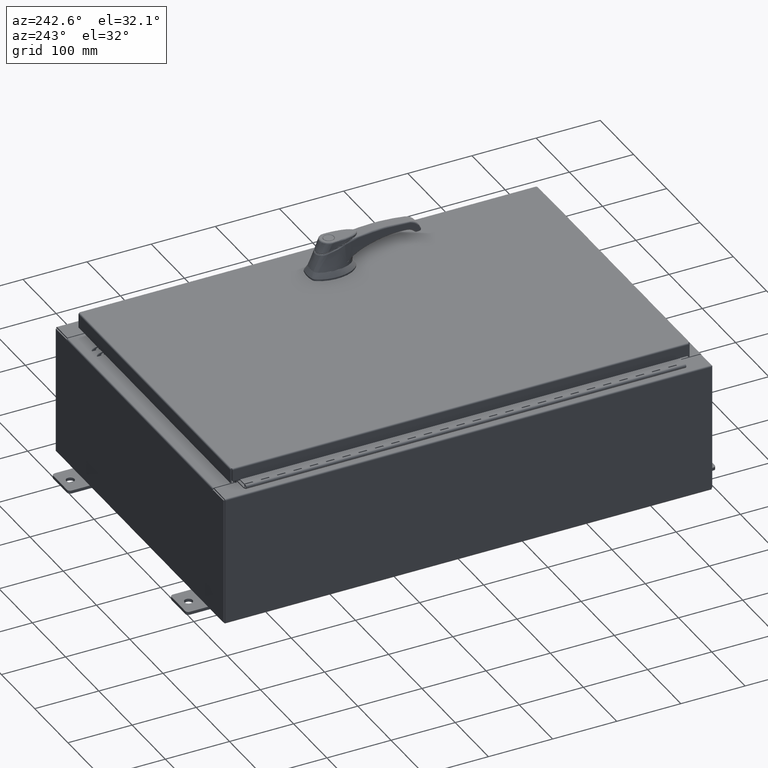
[diagram: clean part render]
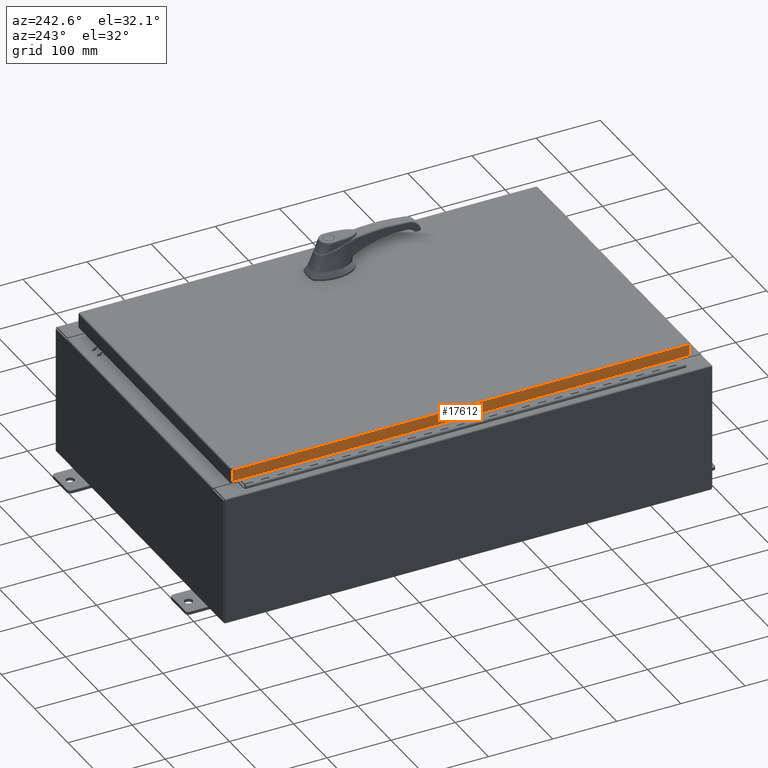
[diagram: same view with one face highlighted and labeled with its STEP entity id]
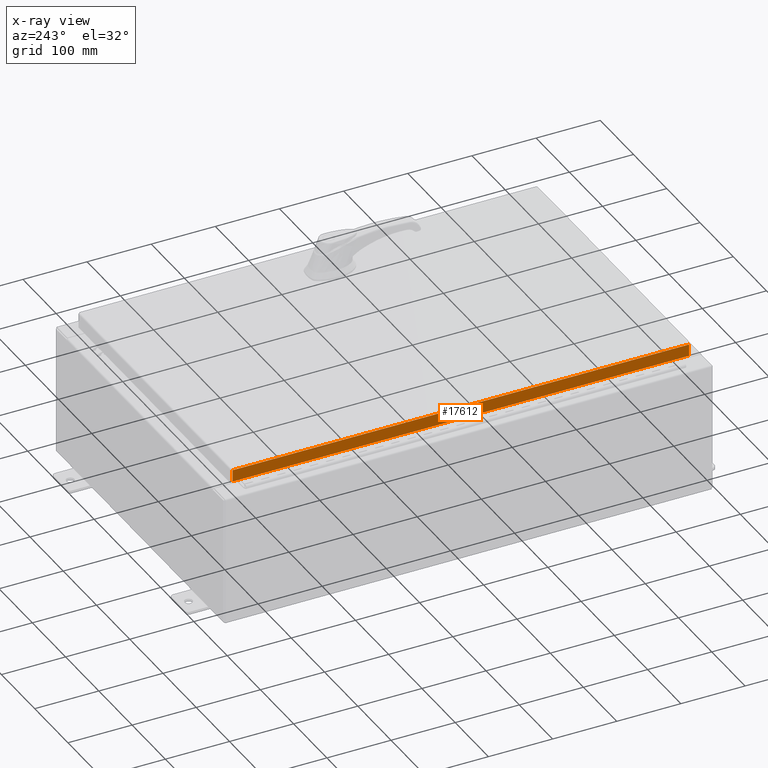
[diagram: x-ray of the same camera — body ghosted, the highlighted face saturated]
A machine part, auxiliary view. The second image highlights one B-rep face of the part: STEP entity #17612.
The next image is the same camera in x-ray: the body ghosted, the highlighted face saturated — about 0% of this face is hidden behind the body in this view.
In plain terms, the highlighted planar face has unit normal (1, 0, -0).
Its self-contained STEP definition (entity closure, byte-faithful):
#2409 = DIRECTION ( 'NONE',  ( -3.034122441942816500E-015, 6.982962677686265900E-015, -1.000000000000000000 ) ) ;
#4701 = CARTESIAN_POINT ( 'NONE',  ( -9.077999999999997600, -14.09399999999999600, -0.08770000000000004200 ) ) ;
#5385 = LINE ( 'NONE', #4701, #98718 ) ;
#9380 = DIRECTION ( 'NONE',  ( -3.034122441942816500E-015, 6.982962677686265900E-015, -1.000000000000000000 ) ) ;
#10675 = CARTESIAN_POINT ( 'NONE',  ( -9.077999999999997600, 14.00515786437626900, -0.08770000000000004200 ) ) ;
#12129 = CARTESIAN_POINT ( 'NONE',  ( -9.077999999999999400, -14.00515786437626200, -0.7949999999999996000 ) ) ;
#12410 = EDGE_CURVE ( 'NONE', #107409, #42560, #48843, .T. ) ;
#13915 = VECTOR ( 'NONE', #80668, 39.37007874015748100 ) ;
#14310 = VERTEX_POINT ( 'NONE', #35357 ) ;
#16062 = ORIENTED_EDGE ( 'NONE', *, *, #12410, .F. ) ;
#17612 = ADVANCED_FACE ( 'NONE', ( #58054 ), #82878, .F. ) ;
#20105 = DIRECTION ( 'NONE',  ( -3.034122441942816500E-015, 0.0000000000000000000, -1.000000000000000000 ) ) ;
#21357 = AXIS2_PLACEMENT_3D ( 'NONE', #101096, #74206, #20105 ) ;
#30541 = VECTOR ( 'NONE', #9380, 39.37007874015748100 ) ;
#34143 = LINE ( 'NONE', #74362, #76548 ) ;
#35357 = CARTESIAN_POINT ( 'NONE',  ( -9.077999999999999400, 14.00515786437627400, -0.7949999999999962700 ) ) ;
#38227 = EDGE_LOOP ( 'NONE', ( #45736, #46488, #67295, #16062 ) ) ;
#42560 = VERTEX_POINT ( 'NONE', #12129 ) ;
#44696 = CARTESIAN_POINT ( 'NONE',  ( -9.077999999999999400, -14.09399999999999600, -0.7949999999999997100 ) ) ;
#45736 = ORIENTED_EDGE ( 'NONE', *, *, #47147, .F. ) ;
#46488 = ORIENTED_EDGE ( 'NONE', *, *, #55041, .T. ) ;
#47147 = EDGE_CURVE ( 'NONE', #53755, #107409, #5385, .T. ) ;
#48843 = LINE ( 'NONE', #63526, #30541 ) ;
#53755 = VERTEX_POINT ( 'NONE', #10675 ) ;
#55041 = EDGE_CURVE ( 'NONE', #53755, #14310, #34143, .T. ) ;
#58054 = FACE_OUTER_BOUND ( 'NONE', #38227, .T. ) ;
#61939 = LINE ( 'NONE', #44696, #13915 ) ;
#63526 = CARTESIAN_POINT ( 'NONE',  ( -9.077999999999997600, -14.00515786437626500, -0.07469999999999976700 ) ) ;
#67295 = ORIENTED_EDGE ( 'NONE', *, *, #95614, .F. ) ;
#74206 = DIRECTION ( 'NONE',  ( 1.000000000000000000, 3.675660434206576600E-031, -3.034122441942816500E-015 ) ) ;
#74362 = CARTESIAN_POINT ( 'NONE',  ( -9.077999999999997600, 14.00515786437626900, 1.256020718460122500E-013 ) ) ;
#76548 = VECTOR ( 'NONE', #2409, 39.37007874015748100 ) ;
#80668 = DIRECTION ( 'NONE',  ( -4.379057701015054300E-047, 1.000000000000000000, 1.211441035930299800E-016 ) ) ;
#82878 = PLANE ( 'NONE',  #21357 ) ;
#95614 = EDGE_CURVE ( 'NONE', #42560, #14310, #61939, .T. ) ;
#98718 = VECTOR ( 'NONE', #113031, 39.37007874015748100 ) ;
#101096 = CARTESIAN_POINT ( 'NONE',  ( -9.077999999999997600, -3.336764542172729700E-030, 2.780457718396846400E-014 ) ) ;
#107409 = VERTEX_POINT ( 'NONE', #115485 ) ;
#113031 = DIRECTION ( 'NONE',  ( 3.675660434206577100E-031, -1.000000000000000000, -1.083515668565077200E-045 ) ) ;
#115485 = CARTESIAN_POINT ( 'NONE',  ( -9.077999999999997600, -14.00515786437626400, -0.08770000000000007000 ) ) ;